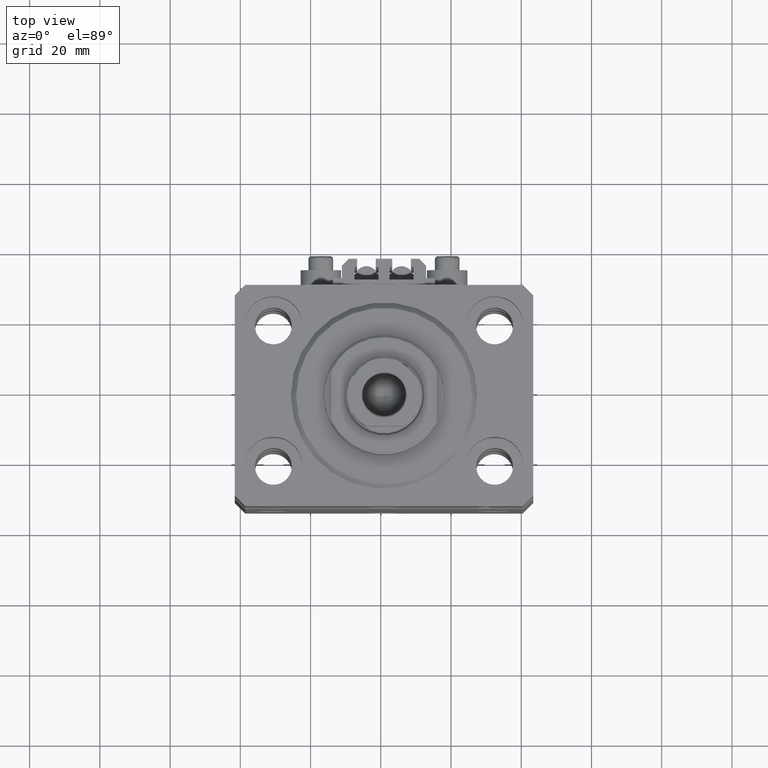
[diagram: clean part render]
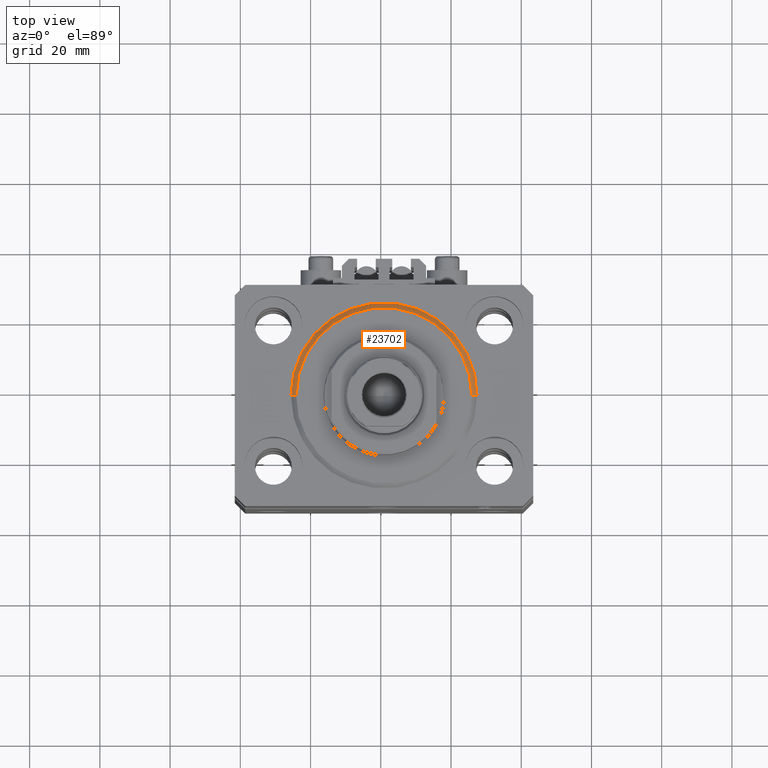
[diagram: same view with one face highlighted and labeled with its STEP entity id]
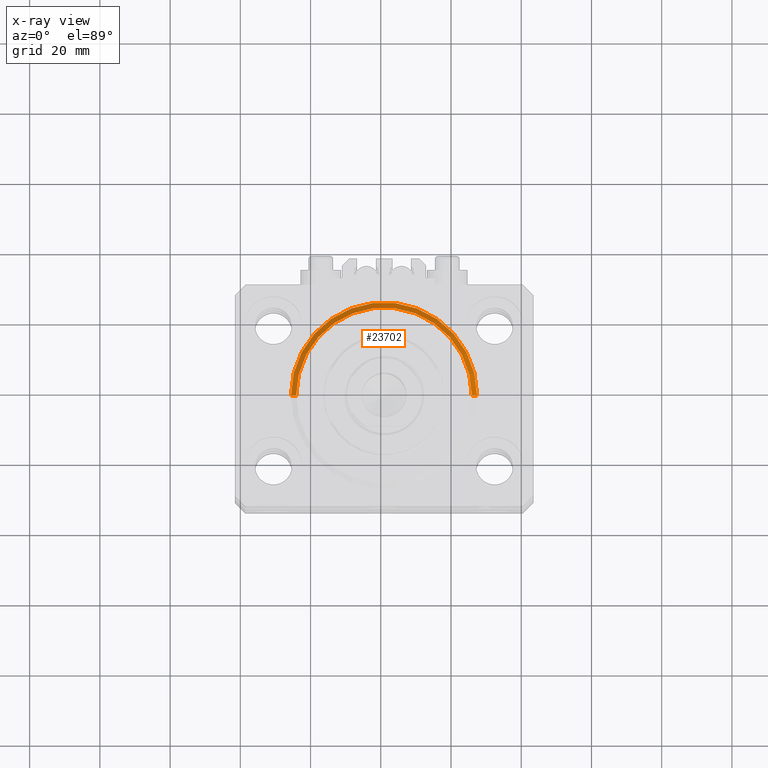
[diagram: x-ray of the same camera — body ghosted, the highlighted face saturated]
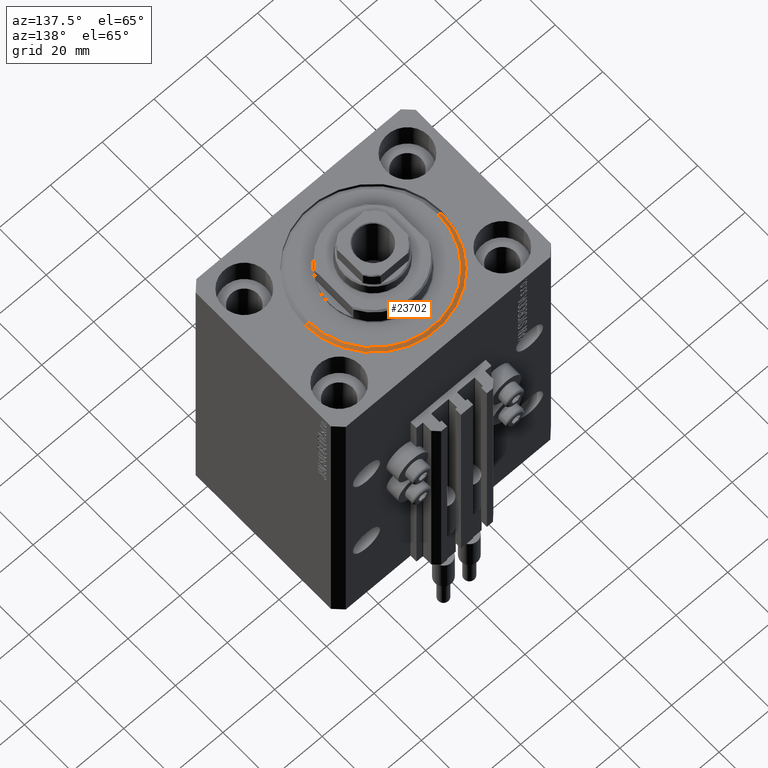
[diagram: same view with one face highlighted and labeled with its STEP entity id]
A machine part, top view. The second image highlights one B-rep face of the part: STEP entity #23702.
The next image is the same camera in x-ray: the body ghosted, the highlighted face saturated — about 0% of this face is hidden behind the body in this view.
A second angle (auxiliary view) of the same face is appended — the face is thin or edge-on in the first view.
In plain terms, the highlighted conical surface has half-angle 45 deg.
Its self-contained STEP definition (entity closure, byte-faithful):
#554 = ORIENTED_EDGE ( 'NONE', *, *, #13820, .F. ) ;
#1313 = DIRECTION ( 'NONE',  ( -0.000000000000000000, -0.000000000000000000, 1.000000000000000000 ) ) ;
#1920 = DIRECTION ( 'NONE',  ( 0.7071067811865483499, 0.000000000000000000, 0.7071067811865466846 ) ) ;
#2204 = LINE ( 'NONE', #9641, #33577 ) ;
#5144 = LINE ( 'NONE', #28144, #22928 ) ;
#9641 = CARTESIAN_POINT ( 'NONE',  ( -26.50000000000000355, 3.245314017740486554E-15, 1.500000000000018652 ) ) ;
#10456 = ORIENTED_EDGE ( 'NONE', *, *, #37572, .T. ) ;
#12698 = DIRECTION ( 'NONE',  ( 1.000000000000000000, 0.000000000000000000, 0.000000000000000000 ) ) ;
#13820 = EDGE_CURVE ( 'NONE', #31067, #19415, #5144, .T. ) ;
#13873 = VERTEX_POINT ( 'NONE', #20961 ) ;
#14005 = DIRECTION ( 'NONE',  ( 1.000000000000000000, 0.000000000000000000, 0.000000000000000000 ) ) ;
#15333 = EDGE_CURVE ( 'NONE', #13873, #31067, #29291, .T. ) ;
#15688 = CARTESIAN_POINT ( 'NONE',  ( 0.000000000000000000, 0.000000000000000000, 1.500000000000018652 ) ) ;
#18861 = EDGE_CURVE ( 'NONE', #19415, #38182, #46806, .T. ) ;
#19111 = EDGE_LOOP ( 'NONE', ( #44126, #10456, #28020, #554 ) ) ;
#19415 = VERTEX_POINT ( 'NONE', #34362 ) ;
#20961 = CARTESIAN_POINT ( 'NONE',  ( -24.99999999999998224, 3.153465507804433615E-15, 0.000000000000000000 ) ) ;
#22928 = VECTOR ( 'NONE', #1920, 1000.000000000000000 ) ;
#23702 = ADVANCED_FACE ( 'NONE', ( #36510 ), #36704, .T. ) ;
#28020 = ORIENTED_EDGE ( 'NONE', *, *, #18861, .F. ) ;
#28144 = CARTESIAN_POINT ( 'NONE',  ( 26.50000000000000355, 0.000000000000000000, 1.500000000000018652 ) ) ;
#29291 = CIRCLE ( 'NONE', #35615, 24.99999999999998224 ) ;
#30802 = DIRECTION ( 'NONE',  ( 1.000000000000000000, 0.000000000000000000, 0.000000000000000000 ) ) ;
#31067 = VERTEX_POINT ( 'NONE', #48750 ) ;
#33577 = VECTOR ( 'NONE', #48205, 1000.000000000000000 ) ;
#34362 = CARTESIAN_POINT ( 'NONE',  ( 26.50000000000000355, 3.245314017740486554E-15, 1.500000000000018652 ) ) ;
#35615 = AXIS2_PLACEMENT_3D ( 'NONE', #42651, #46614, #30802 ) ;
#35903 = AXIS2_PLACEMENT_3D ( 'NONE', #39981, #47159, #14005 ) ;
#36510 = FACE_OUTER_BOUND ( 'NONE', #19111, .T. ) ;
#36704 = CONICAL_SURFACE ( 'NONE', #35903, 26.50000000000000355, 0.7853981633974495002 ) ;
#37366 = CARTESIAN_POINT ( 'NONE',  ( -26.50000000000000355, 0.000000000000000000, 1.500000000000018652 ) ) ;
#37572 = EDGE_CURVE ( 'NONE', #13873, #38182, #2204, .T. ) ;
#38182 = VERTEX_POINT ( 'NONE', #37366 ) ;
#39696 = AXIS2_PLACEMENT_3D ( 'NONE', #15688, #1313, #12698 ) ;
#39981 = CARTESIAN_POINT ( 'NONE',  ( 0.000000000000000000, 0.000000000000000000, 1.500000000000018652 ) ) ;
#42651 = CARTESIAN_POINT ( 'NONE',  ( 0.000000000000000000, 0.000000000000000000, 0.000000000000000000 ) ) ;
#44126 = ORIENTED_EDGE ( 'NONE', *, *, #15333, .F. ) ;
#46614 = DIRECTION ( 'NONE',  ( -0.000000000000000000, -0.000000000000000000, -1.000000000000000000 ) ) ;
#46806 = CIRCLE ( 'NONE', #39696, 26.50000000000000355 ) ;
#47159 = DIRECTION ( 'NONE',  ( -0.000000000000000000, -0.000000000000000000, 1.000000000000000000 ) ) ;
#48205 = DIRECTION ( 'NONE',  ( -0.7071067811865483499, 8.659560562354942719E-17, 0.7071067811865466846 ) ) ;
#48750 = CARTESIAN_POINT ( 'NONE',  ( 24.99999999999998224, 0.000000000000000000, 0.000000000000000000 ) ) ;